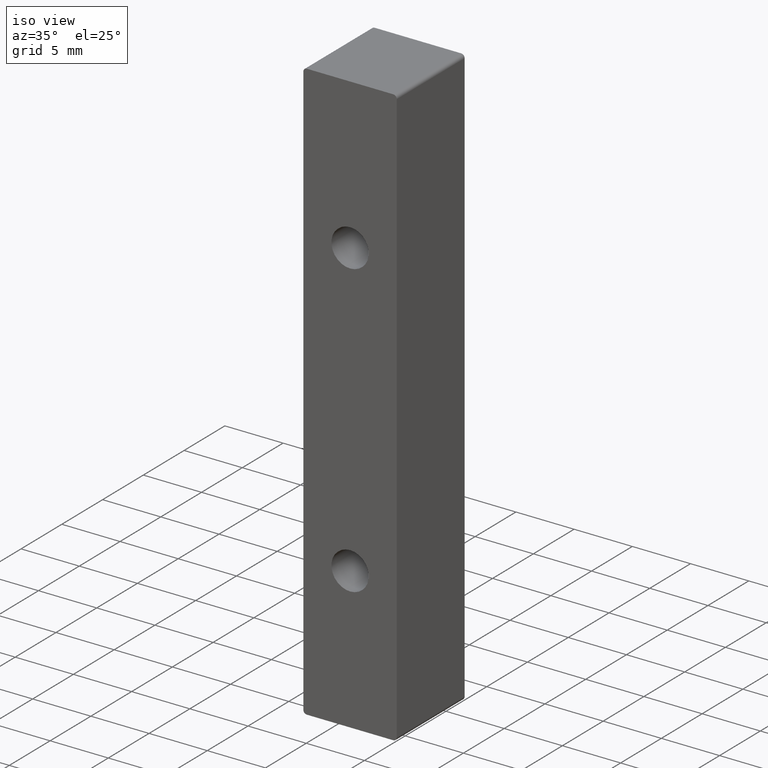
[diagram: clean part render]
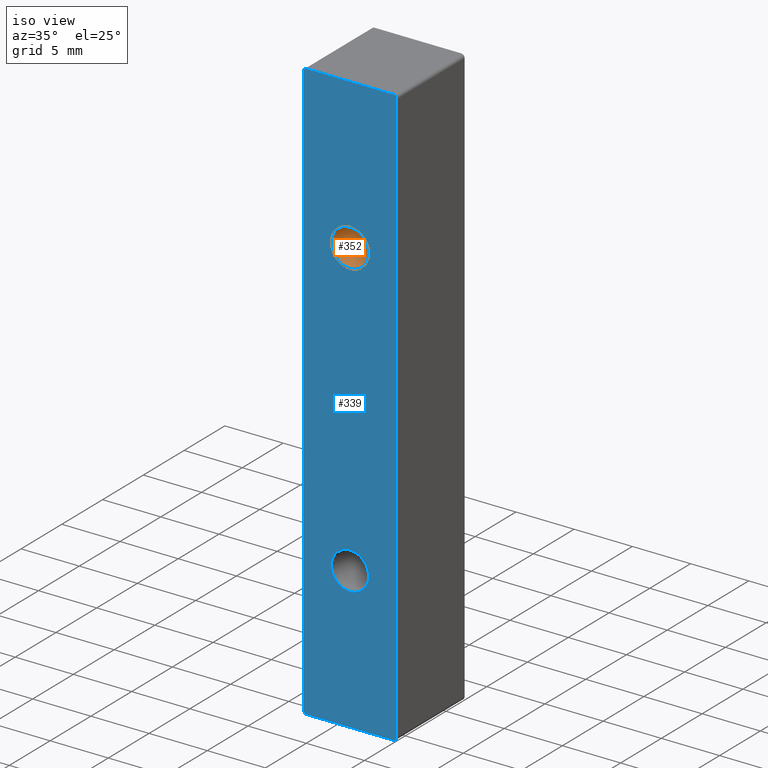
[diagram: same view with the hole feature highlighted: cylindrical wall and planar end face, labeled with their STEP entity ids]
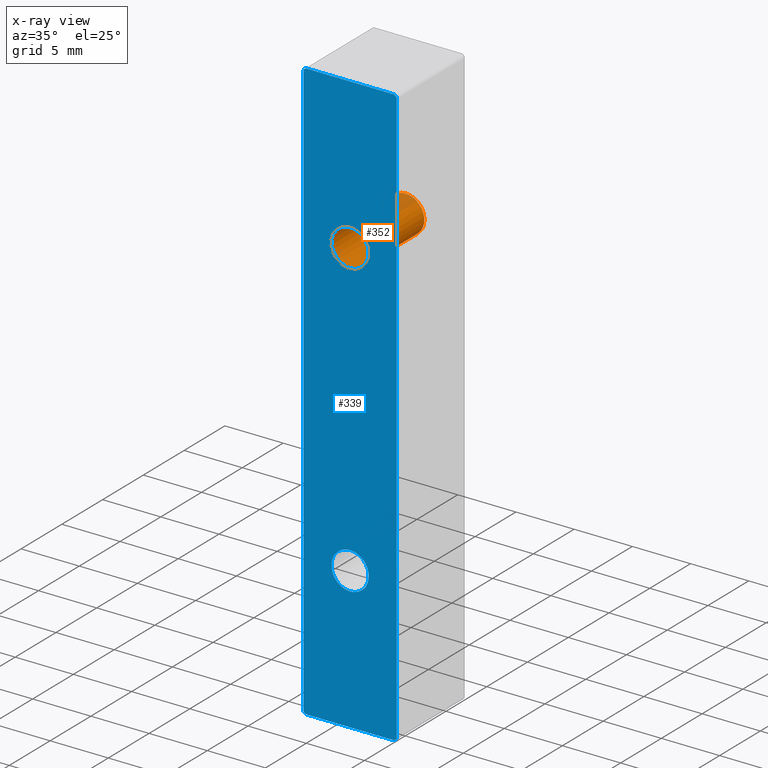
[diagram: x-ray of the same camera — body ghosted, the hole faces saturated]
A machine part, iso view. The highlighted faces form one hole feature of diameter 3.2094 mm: the cylindrical wall (entity #352, orange) and its adjacent planar end face (entity #339, blue) — they share a circular edge in the B-rep.
The next image is the same camera in x-ray (body ghosted, the hole faces saturated) — the bore reads through the body.
Wall:
#23=CYLINDRICAL_SURFACE('',#415,1.60474307896);
#46=FACE_OUTER_BOUND('',#71,.T.);
#71=EDGE_LOOP('',(#290,#291,#292,#293));
#100=LINE('',#616,#125);
#125=VECTOR('',#511,1.60474307896);
#138=CIRCLE('',#389,1.60474307896);
#151=CIRCLE('',#414,1.60474307896);
#166=VERTEX_POINT('',#563);
#180=VERTEX_POINT('',#613);
#198=EDGE_CURVE('',#166,#166,#138,.T.);
#222=EDGE_CURVE('',#180,#180,#151,.T.);
#223=EDGE_CURVE('',#180,#166,#100,.T.);
#290=ORIENTED_EDGE('',*,*,#222,.F.);
#291=ORIENTED_EDGE('',*,*,#223,.T.);
#292=ORIENTED_EDGE('',*,*,#198,.T.);
#293=ORIENTED_EDGE('',*,*,#223,.F.);
#352=ADVANCED_FACE('',(#46),#23,.F.);
#389=AXIS2_PLACEMENT_3D('',#564,#446,#447);
#414=AXIS2_PLACEMENT_3D('',#614,#507,#508);
#415=AXIS2_PLACEMENT_3D('',#615,#509,#510);
#446=DIRECTION('center_axis',(0.,-1.,0.));
#447=DIRECTION('ref_axis',(0.,0.,-1.));
#507=DIRECTION('center_axis',(0.,-1.,0.));
#508=DIRECTION('ref_axis',(1.,0.,0.));
#509=DIRECTION('center_axis',(0.,-1.,0.));
#510=DIRECTION('ref_axis',(0.,0.,-1.));
#511=DIRECTION('',(0.,-1.,0.));
#563=CARTESIAN_POINT('',(-23.028614677314,2.56297272763272,-20.4835950838206));
#564=CARTESIAN_POINT('Origin',(-23.028614677314,2.56297272763272,-22.0883381627806));
#613=CARTESIAN_POINT('',(-23.028614677314,9.38539539508032,-20.4835950838206));
#614=CARTESIAN_POINT('Origin',(-23.028614677314,9.38539539508032,-22.0883381627806));
#615=CARTESIAN_POINT('Origin',(-23.028614677314,5.71076471845917,-22.0883381627806));
#616=CARTESIAN_POINT('',(-23.028614677314,5.71076471845917,-20.4835950838206));
End face:
#25=FACE_BOUND('',#55,.T.);
#26=FACE_BOUND('',#56,.T.);
#33=FACE_OUTER_BOUND('',#54,.T.);
#54=EDGE_LOOP('',(#234,#235,#236,#237,#238,#239,#240,#241,#242,#243));
#55=EDGE_LOOP('',(#244));
#56=EDGE_LOOP('',(#245));
#83=LINE('',#545,#108);
#84=LINE('',#549,#109);
#85=LINE('',#553,#110);
#86=LINE('',#555,#111);
#87=LINE('',#557,#112);
#88=LINE('',#560,#113);
#108=VECTOR('',#432,10.);
#109=VECTOR('',#435,10.);
#110=VECTOR('',#438,10.);
#111=VECTOR('',#439,10.);
#112=VECTOR('',#440,10.);
#113=VECTOR('',#443,10.);
#133=CIRCLE('',#384,0.296442686999991);
#134=CIRCLE('',#385,0.296442686999998);
#135=CIRCLE('',#386,0.296442686999985);
#136=CIRCLE('',#387,0.296442687000001);
#137=CIRCLE('',#388,1.60474307896);
#138=CIRCLE('',#389,1.60474307896);
#155=VERTEX_POINT('',#541);
#156=VERTEX_POINT('',#542);
#157=VERTEX_POINT('',#544);
#158=VERTEX_POINT('',#546);
#159=VERTEX_POINT('',#548);
#160=VERTEX_POINT('',#550);
#161=VERTEX_POINT('',#552);
#162=VERTEX_POINT('',#554);
#163=VERTEX_POINT('',#556);
#164=VERTEX_POINT('',#558);
#165=VERTEX_POINT('',#561);
#166=VERTEX_POINT('',#563);
#187=EDGE_CURVE('',#155,#156,#133,.T.);
#188=EDGE_CURVE('',#157,#155,#83,.T.);
#189=EDGE_CURVE('',#158,#157,#134,.T.);
#190=EDGE_CURVE('',#159,#158,#84,.T.);
#191=EDGE_CURVE('',#160,#159,#135,.T.);
#192=EDGE_CURVE('',#161,#160,#85,.T.);
#193=EDGE_CURVE('',#162,#161,#86,.T.);
#194=EDGE_CURVE('',#163,#162,#87,.T.);
#195=EDGE_CURVE('',#164,#163,#136,.T.);
#196=EDGE_CURVE('',#156,#164,#88,.T.);
#197=EDGE_CURVE('',#165,#165,#137,.T.);
#198=EDGE_CURVE('',#166,#166,#138,.T.);
#234=ORIENTED_EDGE('',*,*,#187,.F.);
#235=ORIENTED_EDGE('',*,*,#188,.F.);
#236=ORIENTED_EDGE('',*,*,#189,.F.);
#237=ORIENTED_EDGE('',*,*,#190,.F.);
#238=ORIENTED_EDGE('',*,*,#191,.F.);
#239=ORIENTED_EDGE('',*,*,#192,.F.);
#240=ORIENTED_EDGE('',*,*,#193,.F.);
#241=ORIENTED_EDGE('',*,*,#194,.F.);
#242=ORIENTED_EDGE('',*,*,#195,.F.);
#243=ORIENTED_EDGE('',*,*,#196,.F.);
#244=ORIENTED_EDGE('',*,*,#197,.F.);
#245=ORIENTED_EDGE('',*,*,#198,.F.);
#328=PLANE('',#383);
#339=ADVANCED_FACE('',(#33,#25,#26),#328,.T.);
#383=AXIS2_PLACEMENT_3D('',#540,#428,#429);
#384=AXIS2_PLACEMENT_3D('',#543,#430,#431);
#385=AXIS2_PLACEMENT_3D('',#547,#433,#434);
#386=AXIS2_PLACEMENT_3D('',#551,#436,#437);
#387=AXIS2_PLACEMENT_3D('',#559,#441,#442);
#388=AXIS2_PLACEMENT_3D('',#562,#444,#445);
#389=AXIS2_PLACEMENT_3D('',#564,#446,#447);
#428=DIRECTION('center_axis',(0.,-1.,0.));
#429=DIRECTION('ref_axis',(0.,0.,-1.));
#430=DIRECTION('center_axis',(0.,1.,0.));
#431=DIRECTION('ref_axis',(0.,0.,1.));
#432=DIRECTION('',(2.65656556241314E-16,0.,1.));
#433=DIRECTION('center_axis',(0.,1.,0.));
#434=DIRECTION('ref_axis',(-1.,0.,0.));
#435=DIRECTION('',(-1.,0.,1.18108832406932E-15));
#436=DIRECTION('center_axis',(0.,1.,0.));
#437=DIRECTION('ref_axis',(0.,0.,-1.));
#438=DIRECTION('',(-7.51072669634541E-16,0.,-1.));
#439=DIRECTION('',(-7.51072669634541E-16,0.,-1.));
#440=DIRECTION('',(-7.51072669634541E-16,0.,-1.));
#441=DIRECTION('center_axis',(0.,1.,0.));
#442=DIRECTION('ref_axis',(1.,0.,0.));
#443=DIRECTION('',(1.,0.,0.));
#444=DIRECTION('center_axis',(0.,-1.,0.));
#445=DIRECTION('ref_axis',(0.,0.,-1.));
#446=DIRECTION('center_axis',(0.,-1.,0.));
#447=DIRECTION('ref_axis',(0.,0.,-1.));
#540=CARTESIAN_POINT('Origin',(-23.0285287518975,2.56297272763272,-34.249469769873));
#541=CARTESIAN_POINT('',(-27.0403864492975,2.56297272763272,-9.47180184812295));
#542=CARTESIAN_POINT('',(-26.7439437622975,2.56297272763272,-9.17535916112294));
#543=CARTESIAN_POINT('Origin',(-26.7439437622975,2.56297272763272,-9.47180184812295));
#544=CARTESIAN_POINT('',(-27.0403864492975,2.56297272763272,-59.027137691623));
#545=CARTESIAN_POINT('',(-27.0403864492975,2.56297272763272,-46.638303730748));
#546=CARTESIAN_POINT('',(-26.7439437622975,2.56297272763272,-59.3235803786229));
#547=CARTESIAN_POINT('Origin',(-26.7439437622975,2.56297272763272,-59.027137691623));
#548=CARTESIAN_POINT('',(-19.3131137414975,2.56297272763272,-59.323580378623));
#549=CARTESIAN_POINT('',(-21.1708212466975,2.56297272763272,-59.323580378623));
#550=CARTESIAN_POINT('',(-19.0166710544975,2.56297272763272,-59.027137691623));
#551=CARTESIAN_POINT('Origin',(-19.3131137414975,2.56297272763272,-59.027137691623));
#552=CARTESIAN_POINT('',(-19.0166710544975,2.56297272763272,-38.5779626271556));
#553=CARTESIAN_POINT('',(-19.0166710544975,2.56297272763272,-21.860635808998));
#554=CARTESIAN_POINT('',(-19.0166710544975,2.56297272763272,-30.6728243071556));
#555=CARTESIAN_POINT('',(-19.0166710544975,2.56297272763272,-21.860635808998));
#556=CARTESIAN_POINT('',(-19.0166710544975,2.56297272763272,-9.47180184812295));
#557=CARTESIAN_POINT('',(-19.0166710544975,2.56297272763272,-21.860635808998));
#558=CARTESIAN_POINT('',(-19.3131137414975,2.56297272763272,-9.17535916112295));
#559=CARTESIAN_POINT('Origin',(-19.3131137414975,2.56297272763272,-9.47180184812295));
#560=CARTESIAN_POINT('',(-24.8862362570975,2.56297272763272,-9.17535916112295));
#561=CARTESIAN_POINT('',(-23.028614677314,2.56297272763272,-45.5577056925706));
#562=CARTESIAN_POINT('Origin',(-23.028614677314,2.56297272763272,-47.1624487715306));
#563=CARTESIAN_POINT('',(-23.028614677314,2.56297272763272,-20.4835950838206));
#564=CARTESIAN_POINT('Origin',(-23.028614677314,2.56297272763272,-22.0883381627806));